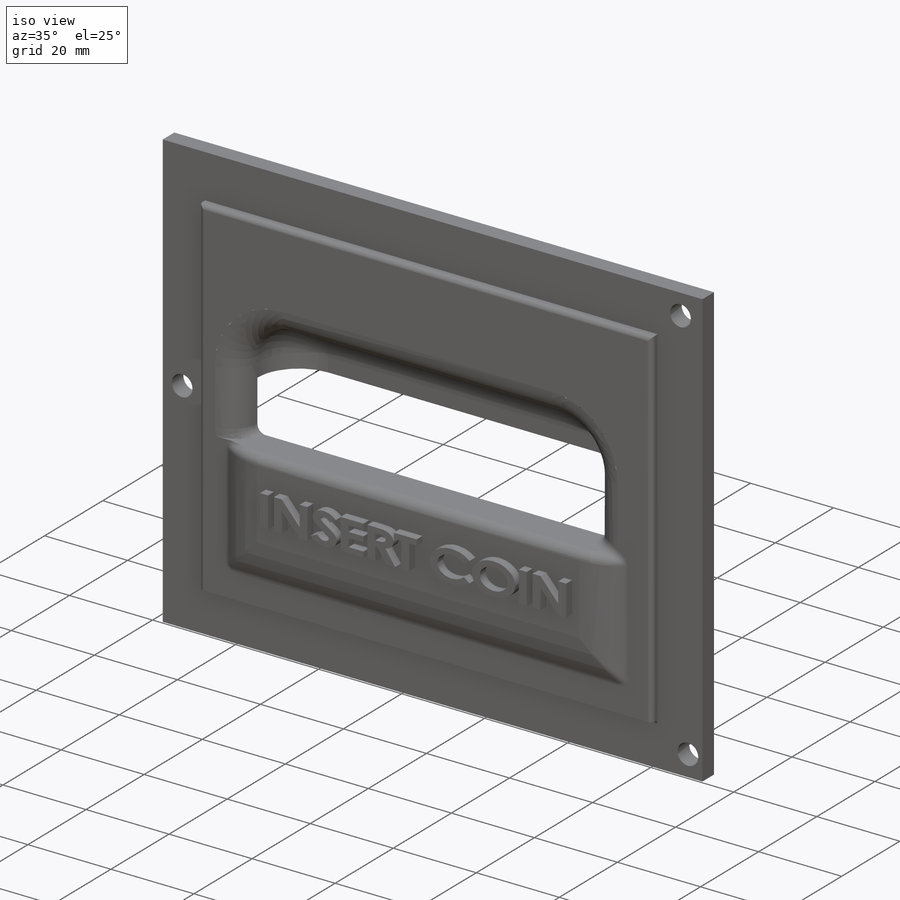
[diagram: iso view]
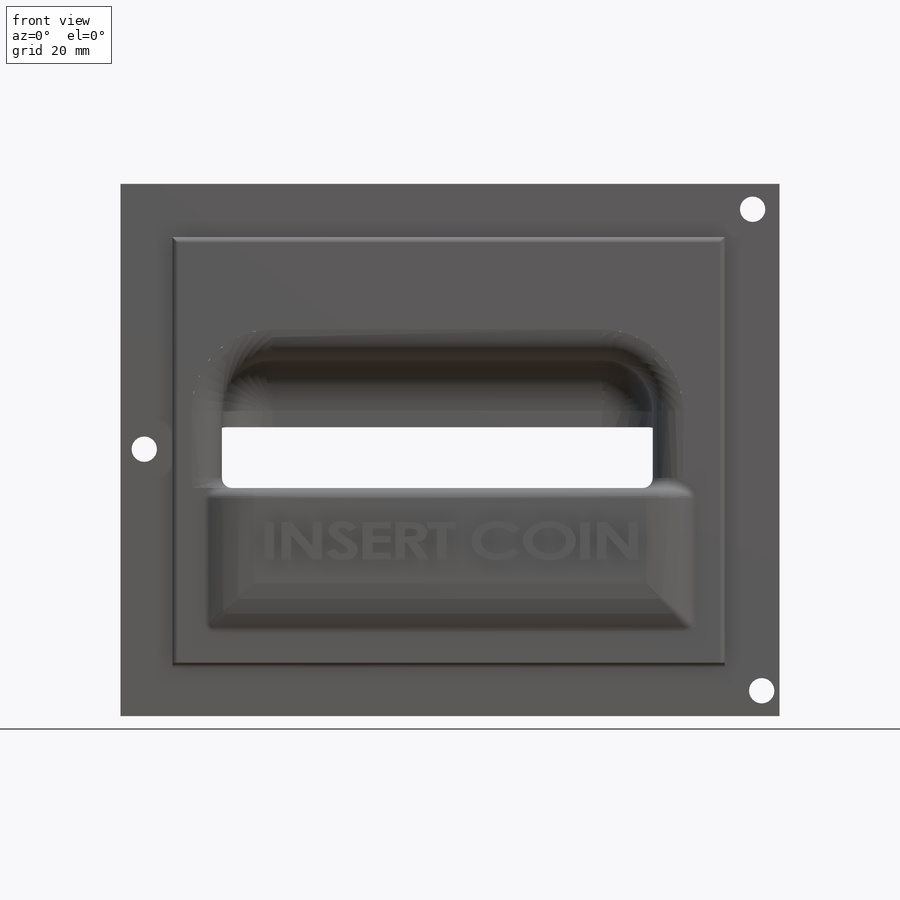
[diagram: front view]
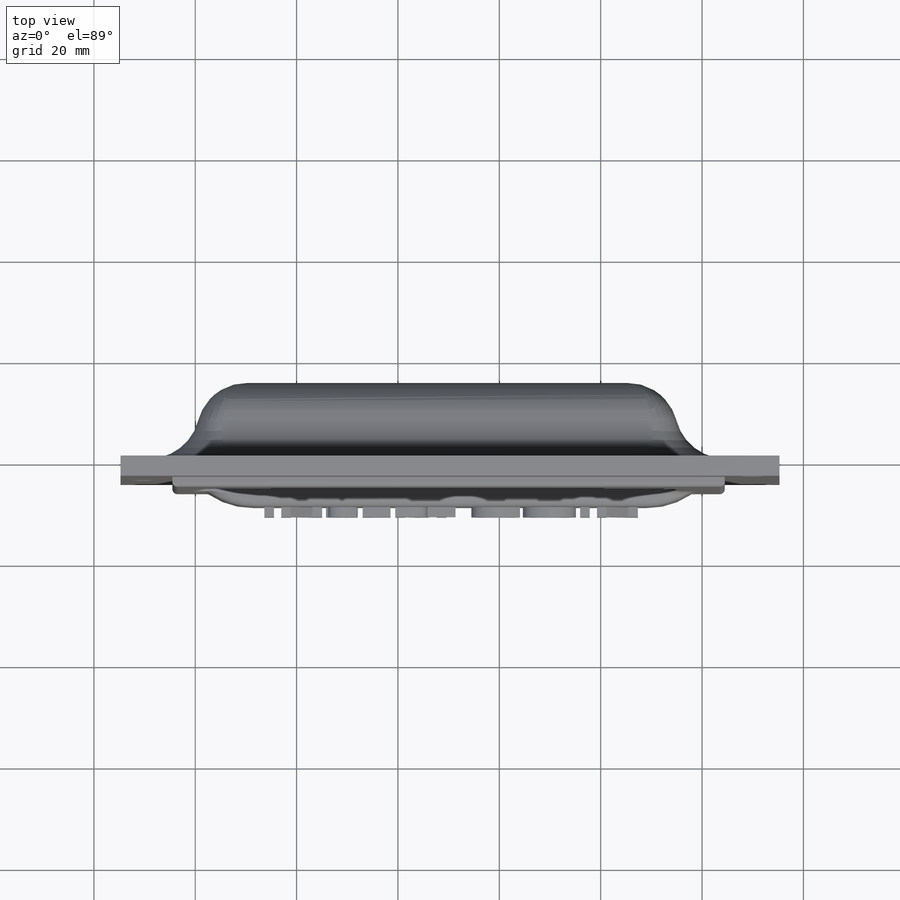
[diagram: top view]
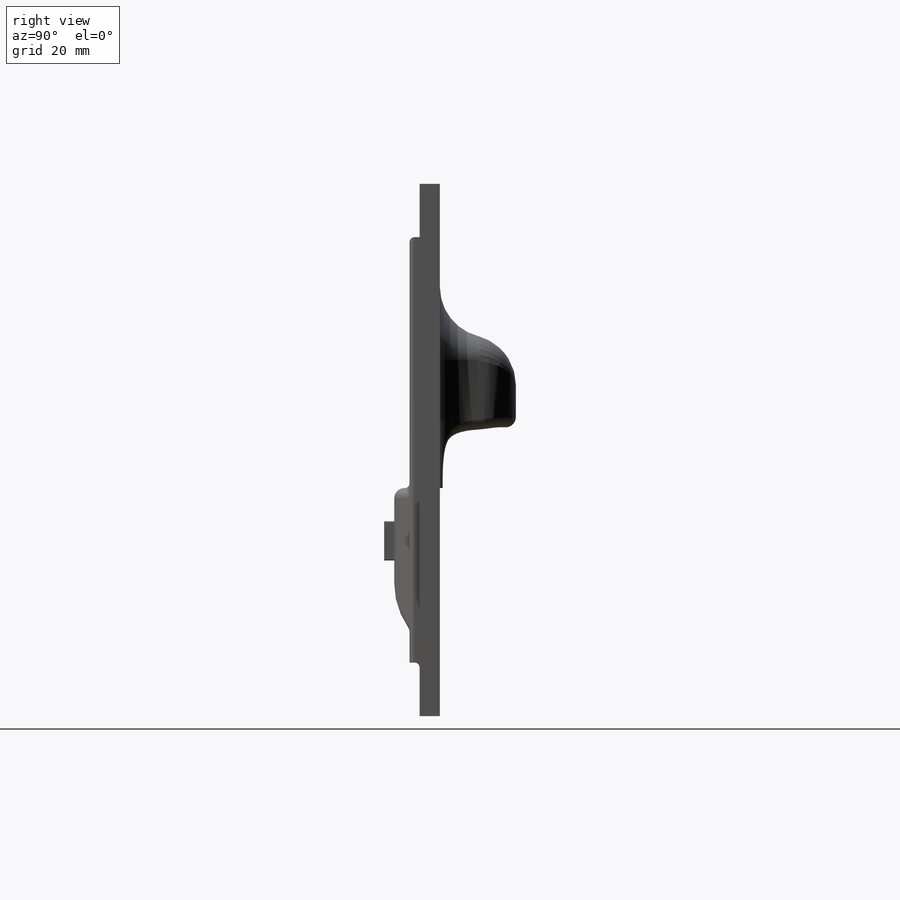
[diagram: right view]
SOLIDWORKS PART (.sldprt)
format: sldprt  version: not decoded by parser v0  size: 881,664 bytes
history: native  units: mm
features: fillet x15, sketch x12, extrude x6, cut_extrude x6, material x1 (+13 scaffold rows collapsed)
feature tree (53):
  scaffold x13  (default folders/planes/origin — collapsed)
  material  "Material <not specified>"
  sketch  "Sketch1"  dims[D1=130.0mm D2=105.0mm]
  extrude  "Boss-Extrude1"  Depth=4mm
  sketch  "Sketch2"  dims[c1.D1=~2.404731mm c1.D5=~2.331418mm c2.D1=5.0mm c2.D2=5.0mm c2.D3=3.5mm c2.D4=~5.29199mm c2.D5=~5.29199mm]
  cut_extrude  "Cut-Extrude1"  Depth=10mm
  sketch  "Sketch3"  dims[c1.D1=~33.783524mm c2.D1=~179.963407deg c3.D1=~33.783524mm c4.D1=~0.036593deg c5.D1=~33.783524mm c6.D1=~0.036593deg c7.D1=~33.783524mm c8.D1=~179.963407deg c9.D1=~100.788413mm c10.D1=~0.036593deg c11.D1=45.0mm c11.D2=30.0mm c11.D3=15.0mm c11.D4=15.0mm]
  extrude  "Boss-Extrude2"  Depth=5mm
  fillet  "Fillet2"  Radius=15mm
  sketch  "Sketch4"  dims[D1=20.0mm D2=25.0mm D3=45.0mm]
  cut_extrude  "Cut-Extrude2"  Depth=5mm
  fillet  "Fillet3"  Radius=15mm
  sketch  "Sketch5"  dims[D4=5.0mm D1=5.0mm D2=5.0mm D3=5.0mm]
  extrude  "Boss-Extrude3"  Depth=10mm
  sketch  "Sketch6"  dims[D1=5.0mm]
  extrude  "Boss-Extrude4"  Depth=5mm
  fillet  "Fillet5"  Radius=3mm
  sketch  "Sketch7"
  cut_extrude  "Cut-Extrude3"  Depth=7mm
  fillet  "Fillet7"  Radius=5mm
  fillet  "Fillet8"  Radius=5mm
  fillet  "Fillet9"  Radius=2mm
  fillet  "Fillet10"  Radius=10mm
  fillet  "Fillet11"  Radius=10mm
  fillet  "Fillet12"  Radius=10mm
  fillet  "Fillet13"  Radius=2mm
  sketch  "Sketch8"  dims[D4=8.0mm D1=10.0mm D2=10.0mm D3=10.0mm]
  cut_extrude  "Cut-Extrude4"  Depth=10mm
  fillet  "Fillet15"  Radius=4mm
  sketch  "Sketch9"  dims[D1=10.0mm D2=5.0mm D3=5.0mm]
  cut_extrude  "Cut-Extrude5"  Depth=15mm
  fillet  "Fillet16"  Radius=2mm
  sketch  "Sketch10"
  extrude  "Boss-Extrude5"  Depth=2mm
  sketch  "Sketch11"  dims[D1=10.0mm]
  cut_extrude  "Cut-Extrude6"  Depth=2mm
  fillet  "Fillet17"  Radius=6mm
  sketch  "Sketch12"
  extrude  "Boss-Extrude6"  Depth=2mm
  fillet  "Fillet18"  Radius=2mm
  fillet  "Fillet19"  Radius=1mm
decode coverage: 36 of 39 modeling features carry decoded parameters
note: ~ marks probable driven/reference dimensions
note: suppression state not decoded; provenance and decode notes live in map.json
